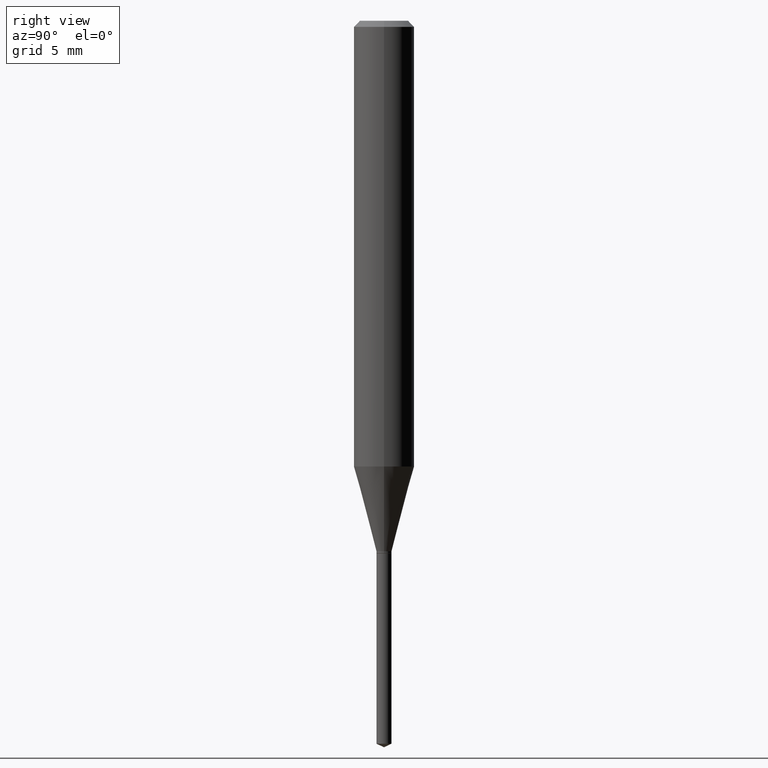
[diagram: clean part render]
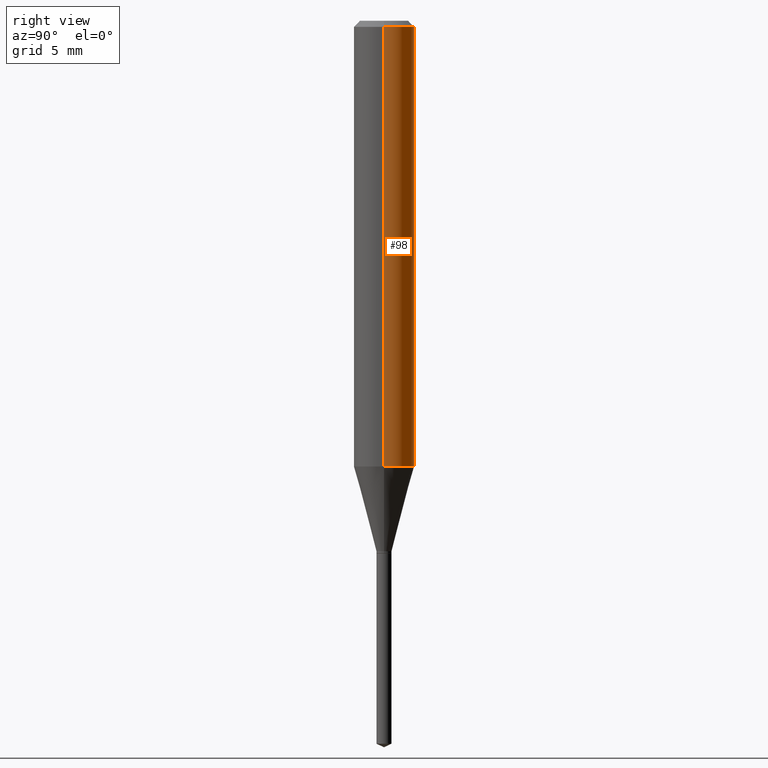
[diagram: same view with one face highlighted and labeled with its STEP entity id]
A machine part, right view. The second image highlights one B-rep face of the part: STEP entity #98.
In plain terms, the highlighted cylindrical surface (edge-blend (fillet) strip) has radius 1.5875 mm, axis along (-0, 0, 1).
Its self-contained STEP definition (entity closure, byte-faithful):
#13 = DIRECTION ( 'NONE',  ( -2.445468806185136877E-29, 3.491481338843145188E-15, 1.000000000000000000 ) ) ;
#23 = CARTESIAN_POINT ( 'NONE',  ( -0.06250000000000000000, -1.184279757891998426E-15, -0.01250000000000008223 ) ) ;
#54 = VERTEX_POINT ( 'NONE', #108 ) ;
#55 = EDGE_CURVE ( 'NONE', #54, #437, #489, .T. ) ;
#73 = DIRECTION ( 'NONE',  ( -2.445468806185136877E-29, 3.491481338843145188E-15, 1.000000000000000000 ) ) ;
#89 = DIRECTION ( 'NONE',  ( -2.445468806185136597E-29, 3.491481338843145583E-15, 1.000000000000000000 ) ) ;
#95 = EDGE_LOOP ( 'NONE', ( #283, #400, #102, #130 ) ) ;
#98 = ADVANCED_FACE ( 'NONE', ( #331 ), #467, .T. ) ;
#102 = ORIENTED_EDGE ( 'NONE', *, *, #157, .F. ) ;
#106 = VERTEX_POINT ( 'NONE', #274 ) ;
#108 = CARTESIAN_POINT ( 'NONE',  ( 0.06250000000000011102, -3.649529586103976953E-15, -0.9202668171250198981 ) ) ;
#113 = EDGE_CURVE ( 'NONE', #106, #322, #238, .T. ) ;
#123 = VECTOR ( 'NONE', #73, 39.37007874015748143 ) ;
#126 = DIRECTION ( 'NONE',  ( 1.000000000000000000, -6.982962677686266711E-15, 0.000000000000000000 ) ) ;
#130 = ORIENTED_EDGE ( 'NONE', *, *, #55, .F. ) ;
#153 = AXIS2_PLACEMENT_3D ( 'NONE', #462, #387, #126 ) ;
#157 = EDGE_CURVE ( 'NONE', #437, #322, #175, .T. ) ;
#161 = AXIS2_PLACEMENT_3D ( 'NONE', #166, #89, #206 ) ;
#166 = CARTESIAN_POINT ( 'NONE',  ( 0.000000000000000000, 0.000000000000000000, 0.000000000000000000 ) ) ;
#175 = CIRCLE ( 'NONE', #153, 0.06250000000000000000 ) ;
#200 = AXIS2_PLACEMENT_3D ( 'NONE', #210, #401, #280 ) ;
#206 = DIRECTION ( 'NONE',  ( 1.000000000000000000, -6.982962677686267499E-15, 4.876176775795936353E-29 ) ) ;
#210 = CARTESIAN_POINT ( 'NONE',  ( 2.250483794646517689E-29, -3.213094418748584889E-15, -0.9202668171250198981 ) ) ;
#222 = CIRCLE ( 'NONE', #200, 0.06250000000000012490 ) ;
#229 = CARTESIAN_POINT ( 'NONE',  ( 0.06250000000000005551, -4.364351673553921131E-16, 3.047610484872463023E-30 ) ) ;
#238 = LINE ( 'NONE', #349, #421 ) ;
#274 = CARTESIAN_POINT ( 'NONE',  ( -0.06250000000000011102, -2.769005208898521090E-15, -0.9202668171250198981 ) ) ;
#280 = DIRECTION ( 'NONE',  ( 1.000000000000000000, -6.982962677686264344E-15, 0.000000000000000000 ) ) ;
#282 = CARTESIAN_POINT ( 'NONE',  ( 0.06250000000000000000, -4.800786840909312308E-16, -0.01250000000000008223 ) ) ;
#283 = ORIENTED_EDGE ( 'NONE', *, *, #330, .T. ) ;
#322 = VERTEX_POINT ( 'NONE', #23 ) ;
#330 = EDGE_CURVE ( 'NONE', #54, #106, #222, .T. ) ;
#331 = FACE_OUTER_BOUND ( 'NONE', #95, .T. ) ;
#349 = CARTESIAN_POINT ( 'NONE',  ( -0.06250000000000005551, 4.440892098500630106E-16, -3.074334431409318916E-30 ) ) ;
#387 = DIRECTION ( 'NONE',  ( -2.445468806185136597E-29, 3.491481338843145583E-15, 1.000000000000000000 ) ) ;
#400 = ORIENTED_EDGE ( 'NONE', *, *, #113, .T. ) ;
#401 = DIRECTION ( 'NONE',  ( -2.445468806185136597E-29, 3.491481338843145583E-15, 1.000000000000000000 ) ) ;
#421 = VECTOR ( 'NONE', #13, 39.37007874015748143 ) ;
#437 = VERTEX_POINT ( 'NONE', #282 ) ;
#462 = CARTESIAN_POINT ( 'NONE',  ( 3.056836007731440977E-31, -4.364351673553961068E-17, -0.01250000000000008223 ) ) ;
#467 = CYLINDRICAL_SURFACE ( 'NONE', #161, 0.06250000000000005551 ) ;
#489 = LINE ( 'NONE', #229, #123 ) ;